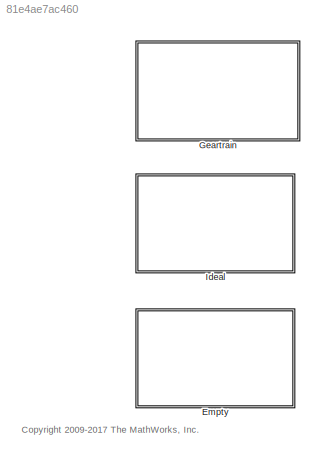
MODEL slx_81e4ae7ac460
KIND library
CONFIG AbsTol = auto
CONFIG EnableMultiTasking = on
CONFIG FixedStep = auto
CONFIG MaxStep = auto
CONFIG MinStep = auto
CONFIG RelTol = 1e-3
CONFIG SampleTimeConstraint = Unconstrained
CONFIG Solver = ode45
CONFIG SolverName = ode45
CONFIG StartTime = 0.0
CONFIG StopTime = 10.0
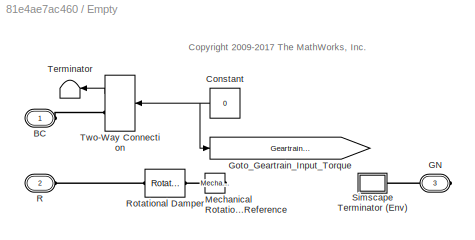
BLOCK [SubSystem] Empty
  Ports = [0, 0, 0, 0, 0, 2, 1]
  RequestExecContextInheritance = off
  Variant = off
BLOCK [PMIOPort] Empty/BC
  Port = 1
  Side = Left
  Tag = PMCPort
BLOCK [Constant] Empty/Constant
  Value = 0
BLOCK [PMIOPort] Empty/GN
  Port = 3
  Side = Right
  Tag = PMCPort
BLOCK [Goto] Empty/Goto_Geartrain_Input_Torque
  GotoTag = Geartrain_Input_Torque
  TagVisibility = global
BLOCK [Reference] Empty/Mechanical Rotational Reference  REF=fl_lib/Mechanical/Rotational Elements/Mechanical
Rotational Reference
  Ports = [0, 0, 0, 0, 0, 1]
  SourceBlock = fl_lib/Mechanical/Rotational Elements/Mechanical\nRotational Reference
  SourceProductBaseCode = SS
  SourceProductName = Simscape
  SourceType = Mechanical\nRotational Reference
BLOCK [PMIOPort] Empty/R
  Port = 2
  Side = Left
  Tag = PMCPort
BLOCK [Reference] Empty/Rotational Damper  REF=fl_lib/Mechanical/Rotational Elements/Rotational Damper
  Ports = [0, 0, 0, 0, 0, 1, 1]
  SourceBlock = fl_lib/Mechanical/Rotational Elements/Rotational Damper
  SourceProductBaseCode = SS
  SourceProductName = Simscape
  SourceType = Rotational Damper
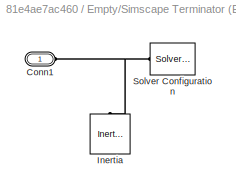
BLOCK [SubSystem] Empty/Simscape Terminator (Env)
  Ports = [0, 0, 0, 0, 0, 1]
  RequestExecContextInheritance = off
  Variant = off
BLOCK [PMIOPort] Empty/Simscape Terminator (Env)/Conn1
  Port = 1
  Side = Left
BLOCK [Reference] Empty/Simscape Terminator (Env)/Inertia  REF=fl_lib/Mechanical/Rotational Elements/Inertia
  Ports = [0, 0, 0, 0, 0, 1]
  SourceBlock = fl_lib/Mechanical/Rotational Elements/Inertia
  SourceProductBaseCode = SS
  SourceProductName = Simscape
  SourceType = Inertia
BLOCK [Reference] Empty/Simscape Terminator (Env)/Solver Configuration  REF=nesl_utility/Solver
Configuration
  Ports = [0, 0, 0, 0, 0, 0, 1]
  SourceBlock = nesl_utility/Solver\nConfiguration
  SourceProductBaseCode = SS
  SourceProductName = Simscape
  SourceType = Solver\nConfiguration
BLOCK [Terminator] Empty/Terminator
BLOCK [TwoWayConnection] Empty/Two-Way Connection
  Ports = [1, 1, 0, 0, 0, 0, 1]
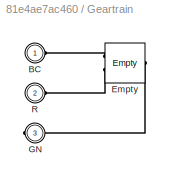
BLOCK [SubSystem] Geartrain
  BlockChoice = Empty
  MemberBlocks = Empty,Ideal
  Ports = [0, 0, 0, 0, 0, 2, 1]
  RequestExecContextInheritance = off
  ShowPortLabels = FromPortBlockName
  TemplateBlock = self
  Variant = off
BLOCK [PMIOPort] Geartrain/BC
  Port = 1
  Side = Left
BLOCK [Reference] Geartrain/Empty  REF=Geartrain_Lib/Empty
  Ports = [0, 0, 0, 0, 0, 2, 1]
  SourceBlock = Geartrain_Lib/Empty
BLOCK [PMIOPort] Geartrain/GN
  Port = 3
  Side = Right
BLOCK [PMIOPort] Geartrain/R
  Port = 2
  Side = Left
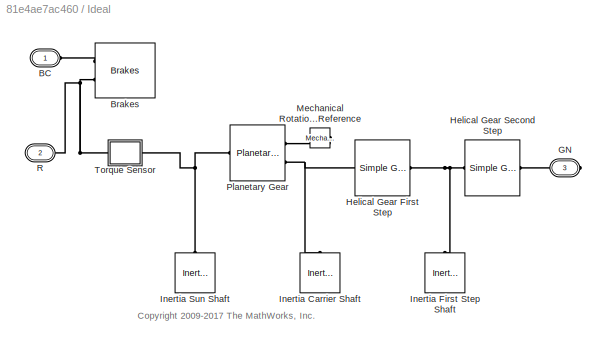
BLOCK [SubSystem] Ideal
  Ports = [0, 0, 0, 0, 0, 2, 1]
  RequestExecContextInheritance = off
  Variant = off
BLOCK [PMIOPort] Ideal/BC
  Port = 1
  Side = Left
  Tag = PMCPort
BLOCK [Reference] Ideal/Brakes  REF=Brakes_Lib/Brakes
  Ports = [0, 0, 0, 0, 0, 2]
  SourceBlock = Brakes_Lib/Brakes
BLOCK [PMIOPort] Ideal/GN
  Port = 3
  Side = Right
  Tag = PMCPort
BLOCK [Reference] Ideal/Helical Gear First Step  REF=sdl_lib/Gears/Simple Gear
  Ports = [0, 0, 0, 0, 0, 1, 1]
  SourceBlock = sdl_lib/Gears/Simple Gear
  SourceProductBaseCode = LD
  SourceProductName = Simscape Driveline
  SourceType = Simple Gear
BLOCK [Reference] Ideal/Helical Gear Second Step  REF=sdl_lib/Gears/Simple Gear
  Ports = [0, 0, 0, 0, 0, 1, 1]
  SourceBlock = sdl_lib/Gears/Simple Gear
  SourceProductBaseCode = LD
  SourceProductName = Simscape Driveline
  SourceType = Simple Gear
BLOCK [Reference] Ideal/Inertia Carrier Shaft  REF=fl_lib/Mechanical/Rotational Elements/Inertia
  Ports = [0, 0, 0, 0, 0, 1]
  SourceBlock = fl_lib/Mechanical/Rotational Elements/Inertia
  SourceProductBaseCode = SS
  SourceProductName = Simscape
  SourceType = Inertia
BLOCK [Reference] Ideal/Inertia First Step Shaft  REF=fl_lib/Mechanical/Rotational Elements/Inertia
  Ports = [0, 0, 0, 0, 0, 1]
  SourceBlock = fl_lib/Mechanical/Rotational Elements/Inertia
  SourceProductBaseCode = SS
  SourceProductName = Simscape
  SourceType = Inertia
BLOCK [Reference] Ideal/Inertia Sun Shaft  REF=fl_lib/Mechanical/Rotational Elements/Inertia
  Ports = [0, 0, 0, 0, 0, 1]
  SourceBlock = fl_lib/Mechanical/Rotational Elements/Inertia
  SourceProductBaseCode = SS
  SourceProductName = Simscape
  SourceType = Inertia
BLOCK [Reference] Ideal/Mechanical Rotational Reference  REF=fl_lib/Mechanical/Rotational Elements/Mechanical
Rotational Reference
  Ports = [0, 0, 0, 0, 0, 1]
  SourceBlock = fl_lib/Mechanical/Rotational Elements/Mechanical\nRotational Reference
  SourceProductBaseCode = SS
  SourceProductName = Simscape
  SourceType = Mechanical\nRotational Reference
BLOCK [Reference] Ideal/Planetary Gear  REF=sdl_lib/Gears/Planetary Gear
  Ports = [0, 0, 0, 0, 0, 1, 2]
  SourceBlock = sdl_lib/Gears/Planetary Gear
  SourceProductBaseCode = LD
  SourceProductName = Simscape Driveline
  SourceType = Planetary Gear
BLOCK [PMIOPort] Ideal/R
  Port = 2
  Side = Left
  Tag = PMCPort
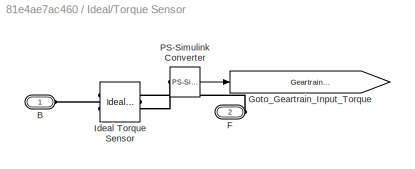
BLOCK [SubSystem] Ideal/Torque Sensor
  Ports = [0, 0, 0, 0, 0, 1, 1]
  RequestExecContextInheritance = off
  Variant = off
BLOCK [PMIOPort] Ideal/Torque Sensor/B
  Port = 1
  Side = Left
BLOCK [PMIOPort] Ideal/Torque Sensor/F
  Port = 2
  Side = Right
BLOCK [Goto] Ideal/Torque Sensor/Goto_Geartrain_Input_Torque
  GotoTag = Geartrain_Input_Torque
  TagVisibility = global
BLOCK [Reference] Ideal/Torque Sensor/Ideal Torque Sensor  REF=fl_lib/Mechanical/Mechanical Sensors/Ideal Torque Sensor
  Ports = [0, 0, 0, 0, 0, 1, 2]
  SourceBlock = fl_lib/Mechanical/Mechanical Sensors/Ideal Torque Sensor
  SourceProductBaseCode = SS
  SourceProductName = Simscape
  SourceType = Ideal Torque Sensor
BLOCK [Reference] Ideal/Torque Sensor/PS-Simulink Converter  REF=nesl_utility/PS-Simulink
Converter
  Ports = [0, 1, 0, 0, 0, 1]
  SourceBlock = nesl_utility/PS-Simulink\nConverter
  SourceProductBaseCode = SS
  SourceProductName = Simscape
  SourceType = PS-Simulink\nConverter
ANNOTATION (root): <copyright redacted>
ANNOTATION Empty: <copyright redacted>
ANNOTATION Ideal: <copyright redacted>
NET Empty/Constant:1 -> Empty/Goto_Geartrain_Input_Torque:1, Empty/Two-Way Connection:1
LINE Empty/Two-Way Connection:1 -> Empty/Terminator:1
LINE Ideal/Torque Sensor/PS-Simulink Converter:1 -> Ideal/Torque Sensor/Goto_Geartrain_Input_Torque:1
PLINE Empty/BC:RConn1 -- Empty/Two-Way Connection:RConn1
PLINE Empty/GN:RConn1 -- Empty/Simscape Terminator (Env):LConn1
PLINE Empty/Mechanical Rotational Reference:LConn1 -- Empty/Rotational Damper:RConn1
PLINE Empty/R:RConn1 -- Empty/Rotational Damper:LConn1
PNET net1: Empty/Simscape Terminator (Env)/Conn1:RConn1 -- Empty/Simscape Terminator (Env)/Inertia:LConn1 -- Empty/Simscape Terminator (Env)/Solver Configuration:RConn1
PLINE Geartrain/BC:RConn1 -- Geartrain/Empty:LConn1
PLINE Geartrain/Empty:LConn2 -- Geartrain/R:RConn1
PLINE Geartrain/Empty:RConn1 -- Geartrain/GN:RConn1
PLINE Ideal/BC:RConn1 -- Ideal/Brakes:LConn1
PNET net2: Ideal/Brakes:LConn2 -- Ideal/R:RConn1 -- Ideal/Torque Sensor:LConn1
PLINE Ideal/GN:RConn1 -- Ideal/Helical Gear Second Step:LConn1
PNET net3: Ideal/Helical Gear First Step:LConn1 -- Ideal/Helical Gear Second Step:RConn1 -- Ideal/Inertia First Step Shaft:LConn1
PNET net4: Ideal/Helical Gear First Step:RConn1 -- Ideal/Inertia Carrier Shaft:LConn1 -- Ideal/Planetary Gear:RConn2
PNET net5: Ideal/Inertia Sun Shaft:LConn1 -- Ideal/Planetary Gear:LConn1 -- Ideal/Torque Sensor:RConn1
PLINE Ideal/Mechanical Rotational Reference:LConn1 -- Ideal/Planetary Gear:RConn1
PLINE Ideal/Torque Sensor/B:RConn1 -- Ideal/Torque Sensor/Ideal Torque Sensor:LConn1
PLINE Ideal/Torque Sensor/F:RConn1 -- Ideal/Torque Sensor/Ideal Torque Sensor:RConn1
PLINE Ideal/Torque Sensor/Ideal Torque Sensor:RConn2 -- Ideal/Torque Sensor/PS-Simulink Converter:LConn1
note: NET lines group one-source signal fan-out (src -> all destinations, sorted); 1:1 wires keep LINE; PNET lines group multi-terminal physical nets as a canonical sorted terminal list (undirected conserving connections); 2-terminal nets keep the pairwise PLINE form
